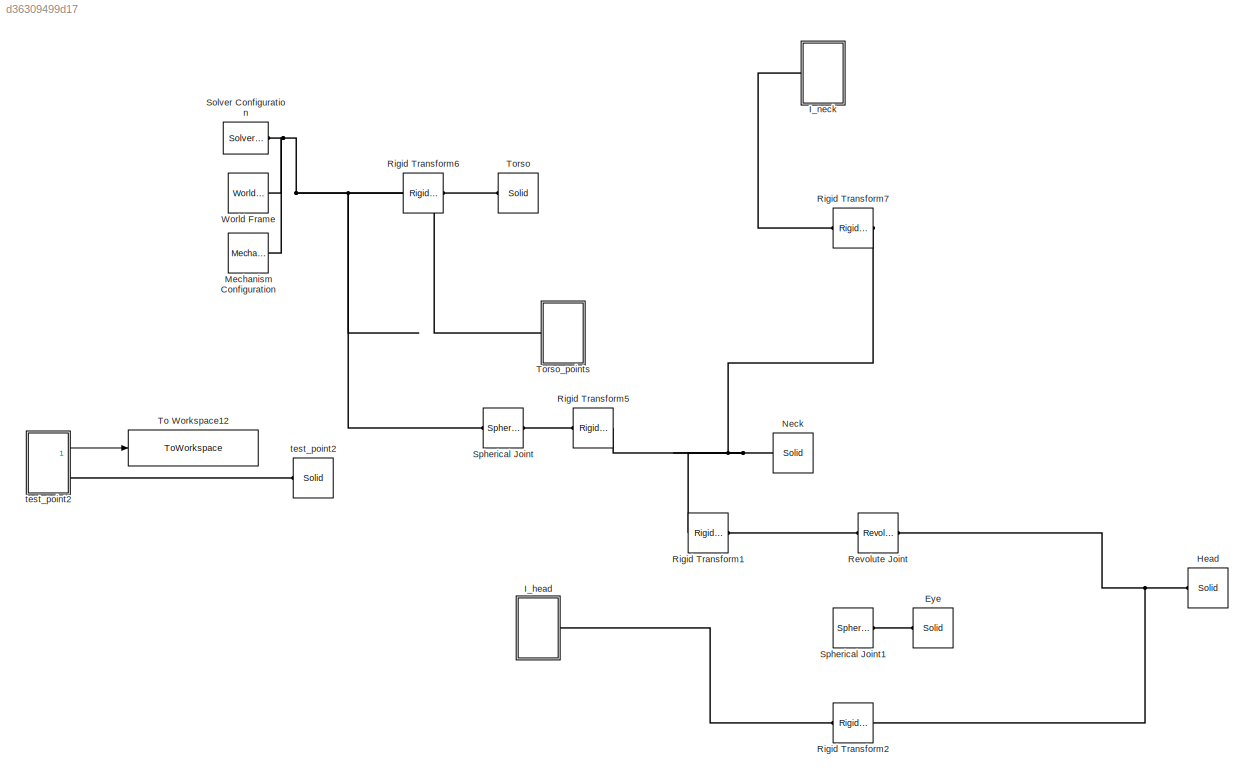
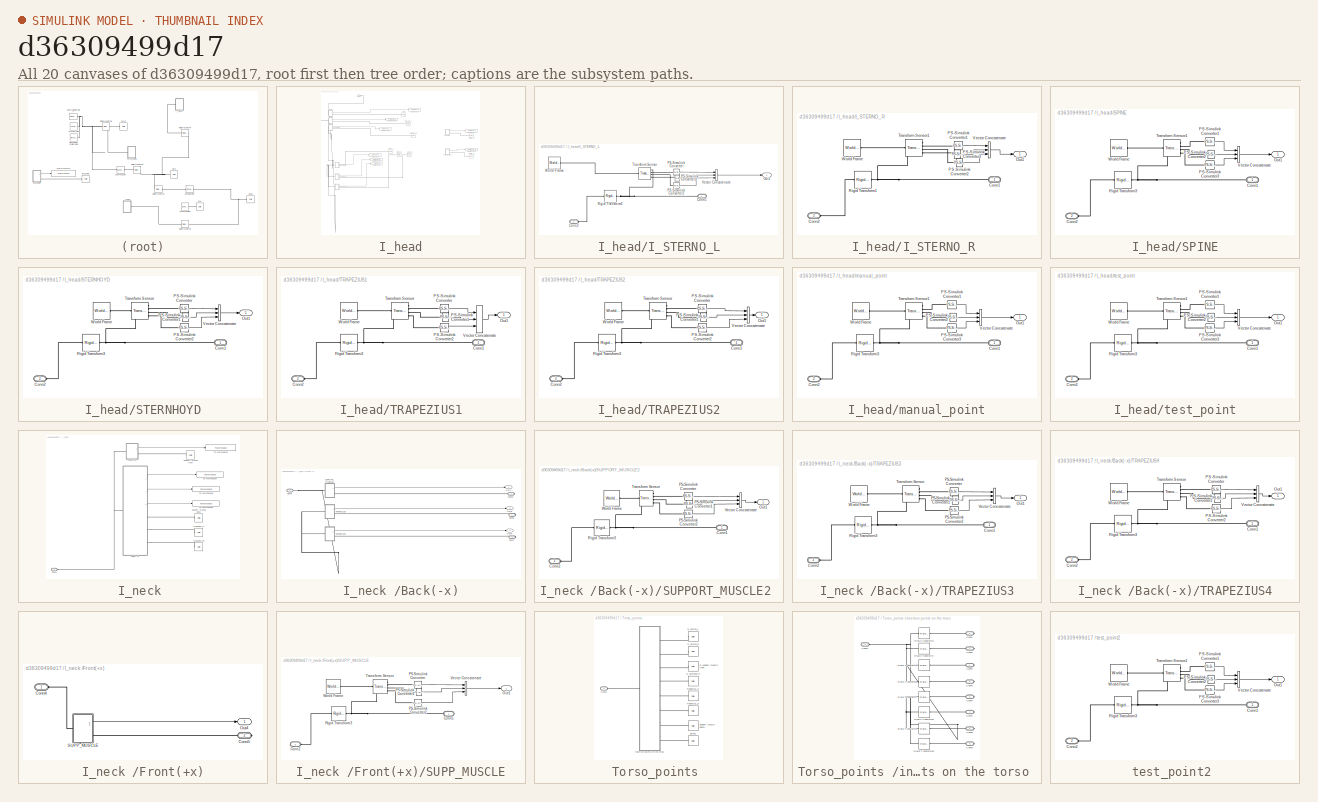
[diagram: thumbnail index - all 20 canvases of the model, root first then tree order]
MODEL slx_d36309499d17
KIND model
CONFIG AbsTol = auto
CONFIG EnableMultiTasking = off
CONFIG FixedStep = auto
CONFIG MaxStep = auto
CONFIG MinStep = auto
CONFIG RelTol = 1e-3
CONFIG SampleTimeConstraint = Unconstrained
CONFIG Solver = VariableStepAuto
CONFIG SolverName = VariableStepAuto
CONFIG StartTime = 0.0
CONFIG StopTime = 10.0
BLOCK [Reference] Eye  REF=sm_lib/Body Elements/Solid
  Commented = on
  Ports = [0, 0, 0, 0, 0, 0, 1]
  SourceBlock = sm_lib/Body Elements/Solid
  SourceProductBaseCode = MS
  SourceProductName = Simscape Multibody
  SourceType = Solid
BLOCK [Reference] Head  REF=sm_lib/Body Elements/Solid
  Ports = [0, 0, 0, 0, 0, 0, 1]
  SourceBlock = sm_lib/Body Elements/Solid
  SourceProductBaseCode = MS
  SourceProductName = Simscape Multibody
  SourceType = Solid
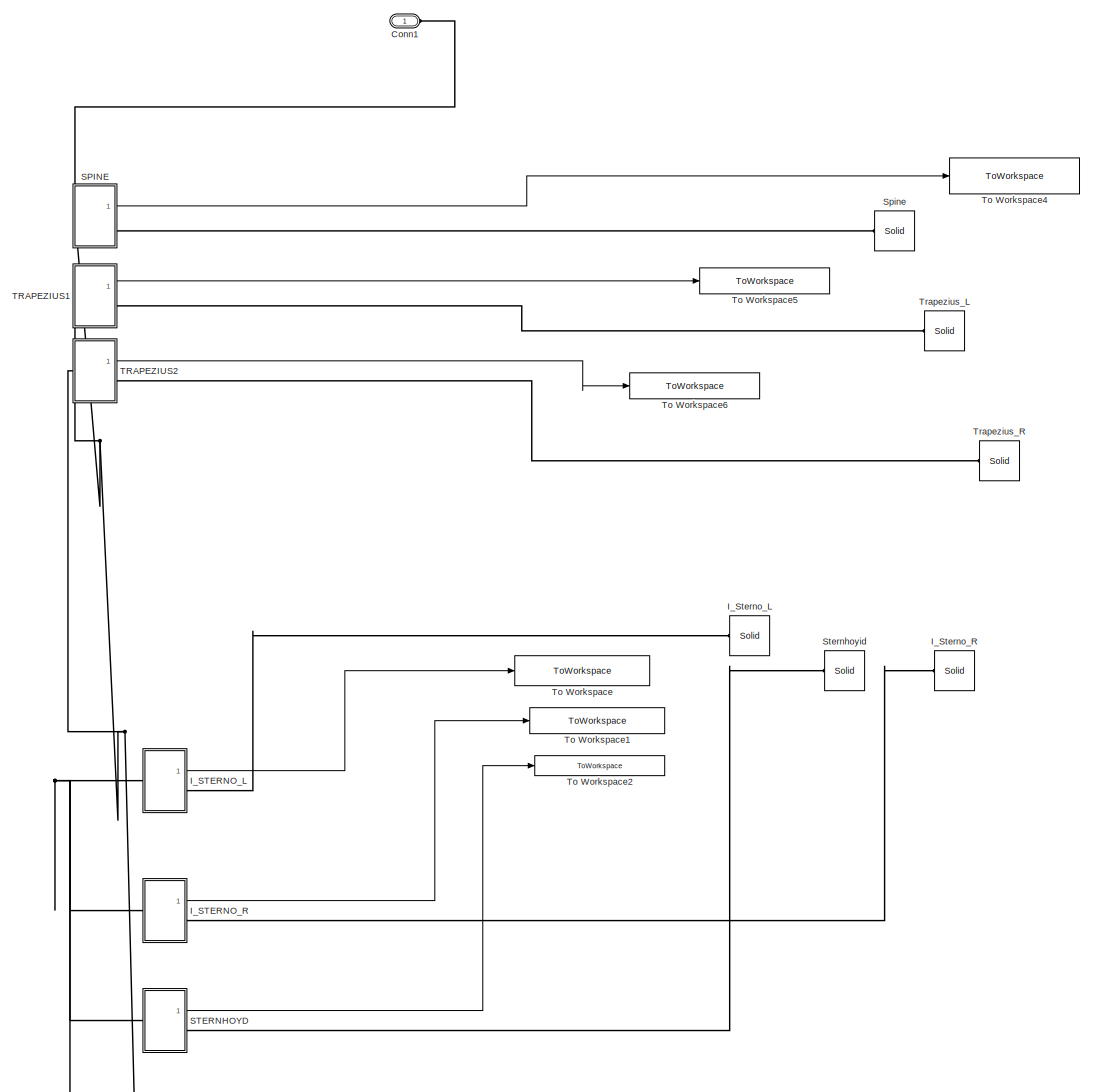
[diagram: I_head - part 1/2, middle left region]
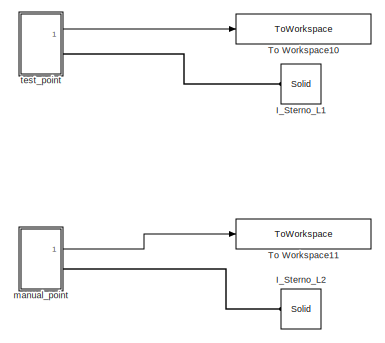
[diagram: I_head - part 2/2, middle right region]
BLOCK [SubSystem] I_head
  Ports = [0, 0, 0, 0, 0, 1]
  RequestExecContextInheritance = off
BLOCK [PMIOPort] I_head/Conn1
  Side = Left
BLOCK [SubSystem] I_head/I_STERNO_L
  Ports = [0, 1, 0, 0, 0, 1, 1]
  RequestExecContextInheritance = off
BLOCK [PMIOPort] I_head/I_STERNO_L/Conn1
  Side = Right
BLOCK [PMIOPort] I_head/I_STERNO_L/Conn2
  Port = 2
  Side = Left
BLOCK [Outport] I_head/I_STERNO_L/Out1
  IconDisplay = Port number
BLOCK [Reference] I_head/I_STERNO_L/PS-Simulink Converter  REF=nesl_utility/PS-Simulink
Converter
  Ports = [0, 1, 0, 0, 0, 1]
  SourceBlock = nesl_utility/PS-Simulink\nConverter
  SourceProductBaseCode = SS
  SourceProductName = Simscape
  SourceType = PS-Simulink\nConverter
BLOCK [Reference] I_head/I_STERNO_L/PS-Simulink Converter1  REF=nesl_utility/PS-Simulink
Converter
  Ports = [0, 1, 0, 0, 0, 1]
  SourceBlock = nesl_utility/PS-Simulink\nConverter
  SourceProductBaseCode = SS
  SourceProductName = Simscape
  SourceType = PS-Simulink\nConverter
BLOCK [Reference] I_head/I_STERNO_L/PS-Simulink Converter2  REF=nesl_utility/PS-Simulink
Converter
  Ports = [0, 1, 0, 0, 0, 1]
  SourceBlock = nesl_utility/PS-Simulink\nConverter
  SourceProductBaseCode = SS
  SourceProductName = Simscape
  SourceType = PS-Simulink\nConverter
BLOCK [Reference] I_head/I_STERNO_L/Rigid Transform3  REF=sm_lib/Frames and
Transforms/Rigid
Transform
  Ports = [0, 0, 0, 0, 0, 1, 1]
  SourceBlock = sm_lib/Frames and\nTransforms/Rigid\nTransform
  SourceProductBaseCode = MS
  SourceProductName = Simscape Multibody
  SourceType = Rigid\nTransform
BLOCK [Reference] I_head/I_STERNO_L/Transform Sensor  REF=sm_lib/Frames and
Transforms/Transform
Sensor
  Ports = [0, 0, 0, 0, 0, 1, 4]
  SourceBlock = sm_lib/Frames and\nTransforms/Transform\nSensor
  SourceProductBaseCode = MS
  SourceProductName = Simscape Multibody
  SourceType = Transform\nSensor
BLOCK [Concatenate] I_head/I_STERNO_L/Vector Concatenate
  NumInputs = 3
  Ports = [3, 1]
BLOCK [Reference] I_head/I_STERNO_L/World Frame  REF=sm_lib/Frames and
Transforms/World Frame
  Ports = [0, 0, 0, 0, 0, 0, 1]
  SourceBlock = sm_lib/Frames and\nTransforms/World Frame
  SourceProductBaseCode = MS
  SourceProductName = Simscape Multibody
  SourceType = World Frame
BLOCK [SubSystem] I_head/I_STERNO_R 
  Ports = [0, 1, 0, 0, 0, 1, 1]
  RequestExecContextInheritance = off
BLOCK [PMIOPort] I_head/I_STERNO_R /Conn1
  Side = Right
BLOCK [PMIOPort] I_head/I_STERNO_R /Conn2
  Port = 2
  Side = Left
BLOCK [Outport] I_head/I_STERNO_R /Out1
  IconDisplay = Port number
BLOCK [Reference] I_head/I_STERNO_R /PS-Simulink Converter1  REF=nesl_utility/PS-Simulink
Converter
  Ports = [0, 1, 0, 0, 0, 1]
  SourceBlock = nesl_utility/PS-Simulink\nConverter
  SourceProductBaseCode = SS
  SourceProductName = Simscape
  SourceType = PS-Simulink\nConverter
BLOCK [Reference] I_head/I_STERNO_R /PS-Simulink Converter2  REF=nesl_utility/PS-Simulink
Converter
  Ports = [0, 1, 0, 0, 0, 1]
  SourceBlock = nesl_utility/PS-Simulink\nConverter
  SourceProductBaseCode = SS
  SourceProductName = Simscape
  SourceType = PS-Simulink\nConverter
BLOCK [Reference] I_head/I_STERNO_R /PS-Simulink Converter3  REF=nesl_utility/PS-Simulink
Converter
  Ports = [0, 1, 0, 0, 0, 1]
  SourceBlock = nesl_utility/PS-Simulink\nConverter
  SourceProductBaseCode = SS
  SourceProductName = Simscape
  SourceType = PS-Simulink\nConverter
BLOCK [Reference] I_head/I_STERNO_R /Rigid Transform1  REF=sm_lib/Frames and
Transforms/Rigid
Transform
  Ports = [0, 0, 0, 0, 0, 1, 1]
  SourceBlock = sm_lib/Frames and\nTransforms/Rigid\nTransform
  SourceProductBaseCode = MS
  SourceProductName = Simscape Multibody
  SourceType = Rigid\nTransform
BLOCK [Reference] I_head/I_STERNO_R /Transform Sensor1  REF=sm_lib/Frames and
Transforms/Transform
Sensor
  Ports = [0, 0, 0, 0, 0, 1, 4]
  SourceBlock = sm_lib/Frames and\nTransforms/Transform\nSensor
  SourceProductBaseCode = MS
  SourceProductName = Simscape Multibody
  SourceType = Transform\nSensor
BLOCK [Concatenate] I_head/I_STERNO_R /Vector Concatenate
  NumInputs = 3
  Ports = [3, 1]
BLOCK [Reference] I_head/I_STERNO_R /World Frame  REF=sm_lib/Frames and
Transforms/World Frame
  Ports = [0, 0, 0, 0, 0, 0, 1]
  SourceBlock = sm_lib/Frames and\nTransforms/World Frame
  SourceProductBaseCode = MS
  SourceProductName = Simscape Multibody
  SourceType = World Frame
BLOCK [Reference] I_head/I_Sterno_L  REF=sm_lib/Body Elements/Solid
  Ports = [0, 0, 0, 0, 0, 0, 1]
  SourceBlock = sm_lib/Body Elements/Solid
  SourceProductBaseCode = MS
  SourceProductName = Simscape Multibody
  SourceType = Solid
BLOCK [Reference] I_head/I_Sterno_L1  REF=sm_lib/Body Elements/Solid
  Commented = on
  Ports = [0, 0, 0, 0, 0, 0, 1]
  SourceBlock = sm_lib/Body Elements/Solid
  SourceProductBaseCode = MS
  SourceProductName = Simscape Multibody
  SourceType = Solid
BLOCK [Reference] I_head/I_Sterno_L2  REF=sm_lib/Body Elements/Solid
  Commented = on
  Ports = [0, 0, 0, 0, 0, 0, 1]
  SourceBlock = sm_lib/Body Elements/Solid
  SourceProductBaseCode = MS
  SourceProductName = Simscape Multibody
  SourceType = Solid
BLOCK [Reference] I_head/I_Sterno_R  REF=sm_lib/Body Elements/Solid
  Ports = [0, 0, 0, 0, 0, 0, 1]
  SourceBlock = sm_lib/Body Elements/Solid
  SourceProductBaseCode = MS
  SourceProductName = Simscape Multibody
  SourceType = Solid
BLOCK [SubSystem] I_head/SPINE
  Ports = [0, 1, 0, 0, 0, 1, 1]
  RequestExecContextInheritance = off
BLOCK [PMIOPort] I_head/SPINE/Conn1
  Side = Right
BLOCK [PMIOPort] I_head/SPINE/Conn2
  Port = 2
  Side = Left
BLOCK [Outport] I_head/SPINE/Out1
  IconDisplay = Port number
BLOCK [Reference] I_head/SPINE/PS-Simulink Converter1  REF=nesl_utility/PS-Simulink
Converter
  Ports = [0, 1, 0, 0, 0, 1]
  SourceBlock = nesl_utility/PS-Simulink\nConverter
  SourceProductBaseCode = SS
  SourceProductName = Simscape
  SourceType = PS-Simulink\nConverter
BLOCK [Reference] I_head/SPINE/PS-Simulink Converter2  REF=nesl_utility/PS-Simulink
Converter
  Ports = [0, 1, 0, 0, 0, 1]
  SourceBlock = nesl_utility/PS-Simulink\nConverter
  SourceProductBaseCode = SS
  SourceProductName = Simscape
  SourceType = PS-Simulink\nConverter
BLOCK [Reference] I_head/SPINE/PS-Simulink Converter3  REF=nesl_utility/PS-Simulink
Converter
  Ports = [0, 1, 0, 0, 0, 1]
  SourceBlock = nesl_utility/PS-Simulink\nConverter
  SourceProductBaseCode = SS
  SourceProductName = Simscape
  SourceType = PS-Simulink\nConverter
BLOCK [Reference] I_head/SPINE/Rigid Transform3  REF=sm_lib/Frames and
Transforms/Rigid
Transform
  Ports = [0, 0, 0, 0, 0, 1, 1]
  SourceBlock = sm_lib/Frames and\nTransforms/Rigid\nTransform
  SourceProductBaseCode = MS
  SourceProductName = Simscape Multibody
  SourceType = Rigid\nTransform
BLOCK [Reference] I_head/SPINE/Transform Sensor1  REF=sm_lib/Frames and
Transforms/Transform
Sensor
  Ports = [0, 0, 0, 0, 0, 1, 4]
  SourceBlock = sm_lib/Frames and\nTransforms/Transform\nSensor
  SourceProductBaseCode = MS
  SourceProductName = Simscape Multibody
  SourceType = Transform\nSensor
BLOCK [Concatenate] I_head/SPINE/Vector Concatenate
  NumInputs = 3
  Ports = [3, 1]
BLOCK [Reference] I_head/SPINE/World Frame  REF=sm_lib/Frames and
Transforms/World Frame
  Ports = [0, 0, 0, 0, 0, 0, 1]
  SourceBlock = sm_lib/Frames and\nTransforms/World Frame
  SourceProductBaseCode = MS
  SourceProductName = Simscape Multibody
  SourceType = World Frame
BLOCK [SubSystem] I_head/STERNHOYD
  Ports = [0, 1, 0, 0, 0, 1, 1]
  RequestExecContextInheritance = off
BLOCK [PMIOPort] I_head/STERNHOYD/Conn1
  Side = Right
BLOCK [PMIOPort] I_head/STERNHOYD/Conn2
  Port = 2
  Side = Left
BLOCK [Outport] I_head/STERNHOYD/Out1
  IconDisplay = Port number
BLOCK [Reference] I_head/STERNHOYD/PS-Simulink Converter  REF=nesl_utility/PS-Simulink
Converter
  Ports = [0, 1, 0, 0, 0, 1]
  SourceBlock = nesl_utility/PS-Simulink\nConverter
  SourceProductBaseCode = SS
  SourceProductName = Simscape
  SourceType = PS-Simulink\nConverter
BLOCK [Reference] I_head/STERNHOYD/PS-Simulink Converter1  REF=nesl_utility/PS-Simulink
Converter
  Ports = [0, 1, 0, 0, 0, 1]
  SourceBlock = nesl_utility/PS-Simulink\nConverter
  SourceProductBaseCode = SS
  SourceProductName = Simscape
  SourceType = PS-Simulink\nConverter
BLOCK [Reference] I_head/STERNHOYD/PS-Simulink Converter2  REF=nesl_utility/PS-Simulink
Converter
  Ports = [0, 1, 0, 0, 0, 1]
  SourceBlock = nesl_utility/PS-Simulink\nConverter
  SourceProductBaseCode = SS
  SourceProductName = Simscape
  SourceType = PS-Simulink\nConverter
BLOCK [Reference] I_head/STERNHOYD/Rigid Transform3  REF=sm_lib/Frames and
Transforms/Rigid
Transform
  Ports = [0, 0, 0, 0, 0, 1, 1]
  SourceBlock = sm_lib/Frames and\nTransforms/Rigid\nTransform
  SourceProductBaseCode = MS
  SourceProductName = Simscape Multibody
  SourceType = Rigid\nTransform
BLOCK [Reference] I_head/STERNHOYD/Transform Sensor  REF=sm_lib/Frames and
Transforms/Transform
Sensor
  Ports = [0, 0, 0, 0, 0, 1, 4]
  SourceBlock = sm_lib/Frames and\nTransforms/Transform\nSensor
  SourceProductBaseCode = MS
  SourceProductName = Simscape Multibody
  SourceType = Transform\nSensor
BLOCK [Concatenate] I_head/STERNHOYD/Vector Concatenate
  NumInputs = 3
  Ports = [3, 1]
BLOCK [Reference] I_head/STERNHOYD/World Frame  REF=sm_lib/Frames and
Transforms/World Frame
  Ports = [0, 0, 0, 0, 0, 0, 1]
  SourceBlock = sm_lib/Frames and\nTransforms/World Frame
  SourceProductBaseCode = MS
  SourceProductName = Simscape Multibody
  SourceType = World Frame
BLOCK [Reference] I_head/Spine  REF=sm_lib/Body Elements/Solid
  Ports = [0, 0, 0, 0, 0, 0, 1]
  SourceBlock = sm_lib/Body Elements/Solid
  SourceProductBaseCode = MS
  SourceProductName = Simscape Multibody
  SourceType = Solid
BLOCK [Reference] I_head/Sternhoyid  REF=sm_lib/Body Elements/Solid
  Ports = [0, 0, 0, 0, 0, 0, 1]
  SourceBlock = sm_lib/Body Elements/Solid
  SourceProductBaseCode = MS
  SourceProductName = Simscape Multibody
  SourceType = Solid
BLOCK [SubSystem] I_head/TRAPEZIUS1
  Ports = [0, 1, 0, 0, 0, 1, 1]
  RequestExecContextInheritance = off
BLOCK [PMIOPort] I_head/TRAPEZIUS1/Conn1
  Side = Right
BLOCK [PMIOPort] I_head/TRAPEZIUS1/Conn2
  Port = 2
  Side = Left
BLOCK [Outport] I_head/TRAPEZIUS1/Out1
  IconDisplay = Port number
BLOCK [Reference] I_head/TRAPEZIUS1/PS-Simulink Converter  REF=nesl_utility/PS-Simulink
Converter
  Ports = [0, 1, 0, 0, 0, 1]
  SourceBlock = nesl_utility/PS-Simulink\nConverter
  SourceProductBaseCode = SS
  SourceProductName = Simscape
  SourceType = PS-Simulink\nConverter
BLOCK [Reference] I_head/TRAPEZIUS1/PS-Simulink Converter1  REF=nesl_utility/PS-Simulink
Converter
  Ports = [0, 1, 0, 0, 0, 1]
  SourceBlock = nesl_utility/PS-Simulink\nConverter
  SourceProductBaseCode = SS
  SourceProductName = Simscape
  SourceType = PS-Simulink\nConverter
BLOCK [Reference] I_head/TRAPEZIUS1/PS-Simulink Converter2  REF=nesl_utility/PS-Simulink
Converter
  Ports = [0, 1, 0, 0, 0, 1]
  SourceBlock = nesl_utility/PS-Simulink\nConverter
  SourceProductBaseCode = SS
  SourceProductName = Simscape
  SourceType = PS-Simulink\nConverter
BLOCK [Reference] I_head/TRAPEZIUS1/Rigid Transform3  REF=sm_lib/Frames and
Transforms/Rigid
Transform
  Ports = [0, 0, 0, 0, 0, 1, 1]
  SourceBlock = sm_lib/Frames and\nTransforms/Rigid\nTransform
  SourceProductBaseCode = MS
  SourceProductName = Simscape Multibody
  SourceType = Rigid\nTransform
BLOCK [Reference] I_head/TRAPEZIUS1/Transform Sensor  REF=sm_lib/Frames and
Transforms/Transform
Sensor
  Ports = [0, 0, 0, 0, 0, 1, 4]
  SourceBlock = sm_lib/Frames and\nTransforms/Transform\nSensor
  SourceProductBaseCode = MS
  SourceProductName = Simscape Multibody
  SourceType = Transform\nSensor
BLOCK [Concatenate] I_head/TRAPEZIUS1/Vector Concatenate
  NumInputs = 3
  Ports = [3, 1]
BLOCK [Reference] I_head/TRAPEZIUS1/World Frame  REF=sm_lib/Frames and
Transforms/World Frame
  Ports = [0, 0, 0, 0, 0, 0, 1]
  SourceBlock = sm_lib/Frames and\nTransforms/World Frame
  SourceProductBaseCode = MS
  SourceProductName = Simscape Multibody
  SourceType = World Frame
BLOCK [SubSystem] I_head/TRAPEZIUS2
  Ports = [0, 1, 0, 0, 0, 1, 1]
  RequestExecContextInheritance = off
BLOCK [PMIOPort] I_head/TRAPEZIUS2/Conn1
  Side = Right
BLOCK [PMIOPort] I_head/TRAPEZIUS2/Conn2
  Port = 2
  Side = Left
BLOCK [Outport] I_head/TRAPEZIUS2/Out1
  IconDisplay = Port number
BLOCK [Reference] I_head/TRAPEZIUS2/PS-Simulink Converter  REF=nesl_utility/PS-Simulink
Converter
  Ports = [0, 1, 0, 0, 0, 1]
  SourceBlock = nesl_utility/PS-Simulink\nConverter
  SourceProductBaseCode = SS
  SourceProductName = Simscape
  SourceType = PS-Simulink\nConverter
BLOCK [Reference] I_head/TRAPEZIUS2/PS-Simulink Converter1  REF=nesl_utility/PS-Simulink
Converter
  Ports = [0, 1, 0, 0, 0, 1]
  SourceBlock = nesl_utility/PS-Simulink\nConverter
  SourceProductBaseCode = SS
  SourceProductName = Simscape
  SourceType = PS-Simulink\nConverter
BLOCK [Reference] I_head/TRAPEZIUS2/PS-Simulink Converter2  REF=nesl_utility/PS-Simulink
Converter
  Ports = [0, 1, 0, 0, 0, 1]
  SourceBlock = nesl_utility/PS-Simulink\nConverter
  SourceProductBaseCode = SS
  SourceProductName = Simscape
  SourceType = PS-Simulink\nConverter
BLOCK [Reference] I_head/TRAPEZIUS2/Rigid Transform3  REF=sm_lib/Frames and
Transforms/Rigid
Transform
  Ports = [0, 0, 0, 0, 0, 1, 1]
  SourceBlock = sm_lib/Frames and\nTransforms/Rigid\nTransform
  SourceProductBaseCode = MS
  SourceProductName = Simscape Multibody
  SourceType = Rigid\nTransform
BLOCK [Reference] I_head/TRAPEZIUS2/Transform Sensor  REF=sm_lib/Frames and
Transforms/Transform
Sensor
  Ports = [0, 0, 0, 0, 0, 1, 4]
  SourceBlock = sm_lib/Frames and\nTransforms/Transform\nSensor
  SourceProductBaseCode = MS
  SourceProductName = Simscape Multibody
  SourceType = Transform\nSensor
BLOCK [Concatenate] I_head/TRAPEZIUS2/Vector Concatenate
  NumInputs = 3
  Ports = [3, 1]
BLOCK [Reference] I_head/TRAPEZIUS2/World Frame  REF=sm_lib/Frames and
Transforms/World Frame
  Ports = [0, 0, 0, 0, 0, 0, 1]
  SourceBlock = sm_lib/Frames and\nTransforms/World Frame
  SourceProductBaseCode = MS
  SourceProductName = Simscape Multibody
  SourceType = World Frame
BLOCK [ToWorkspace] I_head/To Workspace
  FixptAsFi = on
  MaxDataPoints = inf
  Ports = [1]
  SampleTime = -1
  Save2DSignal = 3-D array (concatenate along third dimension)
  VariableName = Sterno_L_move
BLOCK [ToWorkspace] I_head/To Workspace1
  FixptAsFi = on
  MaxDataPoints = inf
  Ports = [1]
  SampleTime = -1
  Save2DSignal = 3-D array (concatenate along third dimension)
  VariableName = Sterno_R_move
BLOCK [ToWorkspace] I_head/To Workspace10
  Commented = on
  FixptAsFi = on
  MaxDataPoints = inf
  Ports = [1]
  SampleTime = -1
  Save2DSignal = 3-D array (concatenate along third dimension)
  VariableName = test_point_move
BLOCK [ToWorkspace] I_head/To Workspace11
  Commented = on
  FixptAsFi = on
  MaxDataPoints = inf
  Ports = [1]
  SampleTime = -1
  Save2DSignal = 3-D array (concatenate along third dimension)
  VariableName = manual_point_move
BLOCK [ToWorkspace] I_head/To Workspace2
  FixptAsFi = on
  MaxDataPoints = inf
  Ports = [1]
  SampleTime = -1
  Save2DSignal = 3-D array (concatenate along third dimension)
  VariableName = Sternhyoid_move
BLOCK [ToWorkspace] I_head/To Workspace4
  FixptAsFi = on
  MaxDataPoints = inf
  Ports = [1]
  SampleTime = -1
  Save2DSignal = 3-D array (concatenate along third dimension)
  VariableName = Spine_move
BLOCK [ToWorkspace] I_head/To Workspace5
  FixptAsFi = on
  MaxDataPoints = inf
  Ports = [1]
  SampleTime = -1
  Save2DSignal = 3-D array (concatenate along third dimension)
  VariableName = Trapezius_L_move
BLOCK [ToWorkspace] I_head/To Workspace6
  FixptAsFi = on
  MaxDataPoints = inf
  Ports = [1]
  SampleTime = -1
  Save2DSignal = 3-D array (concatenate along third dimension)
  VariableName = Trapezius_R_move
BLOCK [Reference] I_head/Trapezius_L  REF=sm_lib/Body Elements/Solid
  Ports = [0, 0, 0, 0, 0, 0, 1]
  SourceBlock = sm_lib/Body Elements/Solid
  SourceProductBaseCode = MS
  SourceProductName = Simscape Multibody
  SourceType = Solid
BLOCK [Reference] I_head/Trapezius_R  REF=sm_lib/Body Elements/Solid
  Ports = [0, 0, 0, 0, 0, 0, 1]
  SourceBlock = sm_lib/Body Elements/Solid
  SourceProductBaseCode = MS
  SourceProductName = Simscape Multibody
  SourceType = Solid
BLOCK [SubSystem] I_head/manual_point
  Commented = on
  Ports = [0, 1, 0, 0, 0, 1, 1]
  RequestExecContextInheritance = off
BLOCK [PMIOPort] I_head/manual_point/Conn1
  Side = Right
BLOCK [PMIOPort] I_head/manual_point/Conn2
  Port = 2
  Side = Left
BLOCK [Outport] I_head/manual_point/Out1
  IconDisplay = Port number
BLOCK [Reference] I_head/manual_point/PS-Simulink Converter1  REF=nesl_utility/PS-Simulink
Converter
  Ports = [0, 1, 0, 0, 0, 1]
  SourceBlock = nesl_utility/PS-Simulink\nConverter
  SourceProductBaseCode = SS
  SourceProductName = Simscape
  SourceType = PS-Simulink\nConverter
BLOCK [Reference] I_head/manual_point/PS-Simulink Converter2  REF=nesl_utility/PS-Simulink
Converter
  Ports = [0, 1, 0, 0, 0, 1]
  SourceBlock = nesl_utility/PS-Simulink\nConverter
  SourceProductBaseCode = SS
  SourceProductName = Simscape
  SourceType = PS-Simulink\nConverter
BLOCK [Reference] I_head/manual_point/PS-Simulink Converter3  REF=nesl_utility/PS-Simulink
Converter
  Ports = [0, 1, 0, 0, 0, 1]
  SourceBlock = nesl_utility/PS-Simulink\nConverter
  SourceProductBaseCode = SS
  SourceProductName = Simscape
  SourceType = PS-Simulink\nConverter
BLOCK [Reference] I_head/manual_point/Rigid Transform3  REF=sm_lib/Frames and
Transforms/Rigid
Transform
  Ports = [0, 0, 0, 0, 0, 1, 1]
  SourceBlock = sm_lib/Frames and\nTransforms/Rigid\nTransform
  SourceProductBaseCode = MS
  SourceProductName = Simscape Multibody
  SourceType = Rigid\nTransform
BLOCK [Reference] I_head/manual_point/Transform Sensor1  REF=sm_lib/Frames and
Transforms/Transform
Sensor
  Ports = [0, 0, 0, 0, 0, 1, 4]
  SourceBlock = sm_lib/Frames and\nTransforms/Transform\nSensor
  SourceProductBaseCode = MS
  SourceProductName = Simscape Multibody
  SourceType = Transform\nSensor
BLOCK [Concatenate] I_head/manual_point/Vector Concatenate
  NumInputs = 3
  Ports = [3, 1]
BLOCK [Reference] I_head/manual_point/World Frame  REF=sm_lib/Frames and
Transforms/World Frame
  Ports = [0, 0, 0, 0, 0, 0, 1]
  SourceBlock = sm_lib/Frames and\nTransforms/World Frame
  SourceProductBaseCode = MS
  SourceProductName = Simscape Multibody
  SourceType = World Frame
BLOCK [SubSystem] I_head/test_point
  Commented = on
  Ports = [0, 1, 0, 0, 0, 1, 1]
  RequestExecContextInheritance = off
BLOCK [PMIOPort] I_head/test_point/Conn1
  Side = Right
BLOCK [PMIOPort] I_head/test_point/Conn2
  Port = 2
  Side = Left
BLOCK [Outport] I_head/test_point/Out1
  IconDisplay = Port number
BLOCK [Reference] I_head/test_point/PS-Simulink Converter1  REF=nesl_utility/PS-Simulink
Converter
  Ports = [0, 1, 0, 0, 0, 1]
  SourceBlock = nesl_utility/PS-Simulink\nConverter
  SourceProductBaseCode = SS
  SourceProductName = Simscape
  SourceType = PS-Simulink\nConverter
BLOCK [Reference] I_head/test_point/PS-Simulink Converter2  REF=nesl_utility/PS-Simulink
Converter
  Ports = [0, 1, 0, 0, 0, 1]
  SourceBlock = nesl_utility/PS-Simulink\nConverter
  SourceProductBaseCode = SS
  SourceProductName = Simscape
  SourceType = PS-Simulink\nConverter
BLOCK [Reference] I_head/test_point/PS-Simulink Converter3  REF=nesl_utility/PS-Simulink
Converter
  Ports = [0, 1, 0, 0, 0, 1]
  SourceBlock = nesl_utility/PS-Simulink\nConverter
  SourceProductBaseCode = SS
  SourceProductName = Simscape
  SourceType = PS-Simulink\nConverter
BLOCK [Reference] I_head/test_point/Rigid Transform3  REF=sm_lib/Frames and
Transforms/Rigid
Transform
  Ports = [0, 0, 0, 0, 0, 1, 1]
  SourceBlock = sm_lib/Frames and\nTransforms/Rigid\nTransform
  SourceProductBaseCode = MS
  SourceProductName = Simscape Multibody
  SourceType = Rigid\nTransform
BLOCK [Reference] I_head/test_point/Transform Sensor1  REF=sm_lib/Frames and
Transforms/Transform
Sensor
  Ports = [0, 0, 0, 0, 0, 1, 4]
  SourceBlock = sm_lib/Frames and\nTransforms/Transform\nSensor
  SourceProductBaseCode = MS
  SourceProductName = Simscape Multibody
  SourceType = Transform\nSensor
BLOCK [Concatenate] I_head/test_point/Vector Concatenate
  NumInputs = 3
  Ports = [3, 1]
BLOCK [Reference] I_head/test_point/World Frame  REF=sm_lib/Frames and
Transforms/World Frame
  Ports = [0, 0, 0, 0, 0, 0, 1]
  SourceBlock = sm_lib/Frames and\nTransforms/World Frame
  SourceProductBaseCode = MS
  SourceProductName = Simscape Multibody
  SourceType = World Frame
BLOCK [SubSystem] I_neck 
  Ports = [0, 0, 0, 0, 0, 1]
  RequestExecContextInheritance = off
BLOCK [SubSystem] I_neck /Back(-x)
  Ports = [0, 3, 0, 0, 0, 1, 3]
  RequestExecContextInheritance = off
BLOCK [PMIOPort] I_neck /Back(-x)/Conn4
  Side = Left
BLOCK [PMIOPort] I_neck /Back(-x)/Conn5
  Port = 2
  Side = Right
BLOCK [PMIOPort] I_neck /Back(-x)/Conn6
  Port = 3
  Side = Right
BLOCK [PMIOPort] I_neck /Back(-x)/Conn7
  Port = 4
  Side = Right
BLOCK [Outport] I_neck /Back(-x)/Out4
  IconDisplay = Port number
BLOCK [Outport] I_neck /Back(-x)/Out5
  IconDisplay = Port number
  Port = 2
BLOCK [Outport] I_neck /Back(-x)/Out6
  IconDisplay = Port number
  Port = 3
BLOCK [SubSystem] I_neck /Back(-x)/SUPPORT_MUSCLE2 
  Ports = [0, 1, 0, 0, 0, 1, 1]
  RequestExecContextInheritance = off
BLOCK [PMIOPort] I_neck /Back(-x)/SUPPORT_MUSCLE2 /Conn1
  Side = Right
BLOCK [PMIOPort] I_neck /Back(-x)/SUPPORT_MUSCLE2 /Conn2
  Port = 2
  Side = Left
BLOCK [Outport] I_neck /Back(-x)/SUPPORT_MUSCLE2 /Out1
  IconDisplay = Port number
BLOCK [Reference] I_neck /Back(-x)/SUPPORT_MUSCLE2 /PS-Simulink Converter  REF=nesl_utility/PS-Simulink
Converter
  Ports = [0, 1, 0, 0, 0, 1]
  SourceBlock = nesl_utility/PS-Simulink\nConverter
  SourceProductBaseCode = SS
  SourceProductName = Simscape
  SourceType = PS-Simulink\nConverter
BLOCK [Reference] I_neck /Back(-x)/SUPPORT_MUSCLE2 /PS-Simulink Converter1  REF=nesl_utility/PS-Simulink
Converter
  Ports = [0, 1, 0, 0, 0, 1]
  SourceBlock = nesl_utility/PS-Simulink\nConverter
  SourceProductBaseCode = SS
  SourceProductName = Simscape
  SourceType = PS-Simulink\nConverter
BLOCK [Reference] I_neck /Back(-x)/SUPPORT_MUSCLE2 /PS-Simulink Converter2  REF=nesl_utility/PS-Simulink
Converter
  Ports = [0, 1, 0, 0, 0, 1]
  SourceBlock = nesl_utility/PS-Simulink\nConverter
  SourceProductBaseCode = SS
  SourceProductName = Simscape
  SourceType = PS-Simulink\nConverter
BLOCK [Reference] I_neck /Back(-x)/SUPPORT_MUSCLE2 /Rigid Transform3  REF=sm_lib/Frames and
Transforms/Rigid
Transform
  Ports = [0, 0, 0, 0, 0, 1, 1]
  SourceBlock = sm_lib/Frames and\nTransforms/Rigid\nTransform
  SourceProductBaseCode = MS
  SourceProductName = Simscape Multibody
  SourceType = Rigid\nTransform
BLOCK [Reference] I_neck /Back(-x)/SUPPORT_MUSCLE2 /Transform Sensor  REF=sm_lib/Frames and
Transforms/Transform
Sensor
  Ports = [0, 0, 0, 0, 0, 1, 4]
  SourceBlock = sm_lib/Frames and\nTransforms/Transform\nSensor
  SourceProductBaseCode = MS
  SourceProductName = Simscape Multibody
  SourceType = Transform\nSensor
BLOCK [Concatenate] I_neck /Back(-x)/SUPPORT_MUSCLE2 /Vector Concatenate
  NumInputs = 3
  Ports = [3, 1]
BLOCK [Reference] I_neck /Back(-x)/SUPPORT_MUSCLE2 /World Frame  REF=sm_lib/Frames and
Transforms/World Frame
  Ports = [0, 0, 0, 0, 0, 0, 1]
  SourceBlock = sm_lib/Frames and\nTransforms/World Frame
  SourceProductBaseCode = MS
  SourceProductName = Simscape Multibody
  SourceType = World Frame
BLOCK [SubSystem] I_neck /Back(-x)/TRAPEZIUS3
  Ports = [0, 1, 0, 0, 0, 1, 1]
  RequestExecContextInheritance = off
BLOCK [PMIOPort] I_neck /Back(-x)/TRAPEZIUS3/Conn1
  Side = Right
BLOCK [PMIOPort] I_neck /Back(-x)/TRAPEZIUS3/Conn2
  Port = 2
  Side = Left
BLOCK [Outport] I_neck /Back(-x)/TRAPEZIUS3/Out1
  IconDisplay = Port number
BLOCK [Reference] I_neck /Back(-x)/TRAPEZIUS3/PS-Simulink Converter  REF=nesl_utility/PS-Simulink
Converter
  Ports = [0, 1, 0, 0, 0, 1]
  SourceBlock = nesl_utility/PS-Simulink\nConverter
  SourceProductBaseCode = SS
  SourceProductName = Simscape
  SourceType = PS-Simulink\nConverter
BLOCK [Reference] I_neck /Back(-x)/TRAPEZIUS3/PS-Simulink Converter1  REF=nesl_utility/PS-Simulink
Converter
  Ports = [0, 1, 0, 0, 0, 1]
  SourceBlock = nesl_utility/PS-Simulink\nConverter
  SourceProductBaseCode = SS
  SourceProductName = Simscape
  SourceType = PS-Simulink\nConverter
BLOCK [Reference] I_neck /Back(-x)/TRAPEZIUS3/PS-Simulink Converter2  REF=nesl_utility/PS-Simulink
Converter
  Ports = [0, 1, 0, 0, 0, 1]
  SourceBlock = nesl_utility/PS-Simulink\nConverter
  SourceProductBaseCode = SS
  SourceProductName = Simscape
  SourceType = PS-Simulink\nConverter
BLOCK [Reference] I_neck /Back(-x)/TRAPEZIUS3/Rigid Transform3  REF=sm_lib/Frames and
Transforms/Rigid
Transform
  Ports = [0, 0, 0, 0, 0, 1, 1]
  SourceBlock = sm_lib/Frames and\nTransforms/Rigid\nTransform
  SourceProductBaseCode = MS
  SourceProductName = Simscape Multibody
  SourceType = Rigid\nTransform
BLOCK [Reference] I_neck /Back(-x)/TRAPEZIUS3/Transform Sensor  REF=sm_lib/Frames and
Transforms/Transform
Sensor
  Ports = [0, 0, 0, 0, 0, 1, 4]
  SourceBlock = sm_lib/Frames and\nTransforms/Transform\nSensor
  SourceProductBaseCode = MS
  SourceProductName = Simscape Multibody
  SourceType = Transform\nSensor
BLOCK [Concatenate] I_neck /Back(-x)/TRAPEZIUS3/Vector Concatenate
  NumInputs = 3
  Ports = [3, 1]
BLOCK [Reference] I_neck /Back(-x)/TRAPEZIUS3/World Frame  REF=sm_lib/Frames and
Transforms/World Frame
  Ports = [0, 0, 0, 0, 0, 0, 1]
  SourceBlock = sm_lib/Frames and\nTransforms/World Frame
  SourceProductBaseCode = MS
  SourceProductName = Simscape Multibody
  SourceType = World Frame
BLOCK [SubSystem] I_neck /Back(-x)/TRAPEZIUS4
  Ports = [0, 1, 0, 0, 0, 1, 1]
  RequestExecContextInheritance = off
BLOCK [PMIOPort] I_neck /Back(-x)/TRAPEZIUS4/Conn1
  Side = Right
BLOCK [PMIOPort] I_neck /Back(-x)/TRAPEZIUS4/Conn2
  Port = 2
  Side = Left
BLOCK [Outport] I_neck /Back(-x)/TRAPEZIUS4/Out1
  IconDisplay = Port number
BLOCK [Reference] I_neck /Back(-x)/TRAPEZIUS4/PS-Simulink Converter  REF=nesl_utility/PS-Simulink
Converter
  Ports = [0, 1, 0, 0, 0, 1]
  SourceBlock = nesl_utility/PS-Simulink\nConverter
  SourceProductBaseCode = SS
  SourceProductName = Simscape
  SourceType = PS-Simulink\nConverter
BLOCK [Reference] I_neck /Back(-x)/TRAPEZIUS4/PS-Simulink Converter1  REF=nesl_utility/PS-Simulink
Converter
  Ports = [0, 1, 0, 0, 0, 1]
  SourceBlock = nesl_utility/PS-Simulink\nConverter
  SourceProductBaseCode = SS
  SourceProductName = Simscape
  SourceType = PS-Simulink\nConverter
BLOCK [Reference] I_neck /Back(-x)/TRAPEZIUS4/PS-Simulink Converter2  REF=nesl_utility/PS-Simulink
Converter
  Ports = [0, 1, 0, 0, 0, 1]
  SourceBlock = nesl_utility/PS-Simulink\nConverter
  SourceProductBaseCode = SS
  SourceProductName = Simscape
  SourceType = PS-Simulink\nConverter
BLOCK [Reference] I_neck /Back(-x)/TRAPEZIUS4/Rigid Transform3  REF=sm_lib/Frames and
Transforms/Rigid
Transform
  Ports = [0, 0, 0, 0, 0, 1, 1]
  SourceBlock = sm_lib/Frames and\nTransforms/Rigid\nTransform
  SourceProductBaseCode = MS
  SourceProductName = Simscape Multibody
  SourceType = Rigid\nTransform
BLOCK [Reference] I_neck /Back(-x)/TRAPEZIUS4/Transform Sensor  REF=sm_lib/Frames and
Transforms/Transform
Sensor
  Ports = [0, 0, 0, 0, 0, 1, 4]
  SourceBlock = sm_lib/Frames and\nTransforms/Transform\nSensor
  SourceProductBaseCode = MS
  SourceProductName = Simscape Multibody
  SourceType = Transform\nSensor
BLOCK [Concatenate] I_neck /Back(-x)/TRAPEZIUS4/Vector Concatenate
  NumInputs = 3
  Ports = [3, 1]
BLOCK [Reference] I_neck /Back(-x)/TRAPEZIUS4/World Frame  REF=sm_lib/Frames and
Transforms/World Frame
  Ports = [0, 0, 0, 0, 0, 0, 1]
  SourceBlock = sm_lib/Frames and\nTransforms/World Frame
  SourceProductBaseCode = MS
  SourceProductName = Simscape Multibody
  SourceType = World Frame
BLOCK [PMIOPort] I_neck /Conn1
  Side = Left
BLOCK [SubSystem] I_neck /Front(+x)
  Ports = [0, 1, 0, 0, 0, 1, 1]
  RequestExecContextInheritance = off
BLOCK [PMIOPort] I_neck /Front(+x)/Conn4
  Side = Left
BLOCK [PMIOPort] I_neck /Front(+x)/Conn5
  Port = 2
  Side = Right
BLOCK [Outport] I_neck /Front(+x)/Out4
  IconDisplay = Port number
BLOCK [SubSystem] I_neck /Front(+x)/SUPP_MUSCLE
  Ports = [0, 1, 0, 0, 0, 1, 1]
  RequestExecContextInheritance = off
BLOCK [PMIOPort] I_neck /Front(+x)/SUPP_MUSCLE/Conn1
  Side = Right
BLOCK [PMIOPort] I_neck /Front(+x)/SUPP_MUSCLE/Conn2
  Port = 2
  Side = Left
BLOCK [Outport] I_neck /Front(+x)/SUPP_MUSCLE/Out1
  IconDisplay = Port number
BLOCK [Reference] I_neck /Front(+x)/SUPP_MUSCLE/PS-Simulink Converter  REF=nesl_utility/PS-Simulink
Converter
  Ports = [0, 1, 0, 0, 0, 1]
  SourceBlock = nesl_utility/PS-Simulink\nConverter
  SourceProductBaseCode = SS
  SourceProductName = Simscape
  SourceType = PS-Simulink\nConverter
BLOCK [Reference] I_neck /Front(+x)/SUPP_MUSCLE/PS-Simulink Converter1  REF=nesl_utility/PS-Simulink
Converter
  Ports = [0, 1, 0, 0, 0, 1]
  SourceBlock = nesl_utility/PS-Simulink\nConverter
  SourceProductBaseCode = SS
  SourceProductName = Simscape
  SourceType = PS-Simulink\nConverter
BLOCK [Reference] I_neck /Front(+x)/SUPP_MUSCLE/PS-Simulink Converter2  REF=nesl_utility/PS-Simulink
Converter
  Ports = [0, 1, 0, 0, 0, 1]
  SourceBlock = nesl_utility/PS-Simulink\nConverter
  SourceProductBaseCode = SS
  SourceProductName = Simscape
  SourceType = PS-Simulink\nConverter
BLOCK [Reference] I_neck /Front(+x)/SUPP_MUSCLE/Rigid Transform3  REF=sm_lib/Frames and
Transforms/Rigid
Transform
  Ports = [0, 0, 0, 0, 0, 1, 1]
  SourceBlock = sm_lib/Frames and\nTransforms/Rigid\nTransform
  SourceProductBaseCode = MS
  SourceProductName = Simscape Multibody
  SourceType = Rigid\nTransform
BLOCK [Reference] I_neck /Front(+x)/SUPP_MUSCLE/Transform Sensor  REF=sm_lib/Frames and
Transforms/Transform
Sensor
  Ports = [0, 0, 0, 0, 0, 1, 4]
  SourceBlock = sm_lib/Frames and\nTransforms/Transform\nSensor
  SourceProductBaseCode = MS
  SourceProductName = Simscape Multibody
  SourceType = Transform\nSensor
BLOCK [Concatenate] I_neck /Front(+x)/SUPP_MUSCLE/Vector Concatenate
  NumInputs = 3
  Ports = [3, 1]
BLOCK [Reference] I_neck /Front(+x)/SUPP_MUSCLE/World Frame  REF=sm_lib/Frames and
Transforms/World Frame
  Ports = [0, 0, 0, 0, 0, 0, 1]
  SourceBlock = sm_lib/Frames and\nTransforms/World Frame
  SourceProductBaseCode = MS
  SourceProductName = Simscape Multibody
  SourceType = World Frame
BLOCK [Reference] I_neck /Support muscle back  REF=sm_lib/Body Elements/Solid
  Ports = [0, 0, 0, 0, 0, 0, 1]
  SourceBlock = sm_lib/Body Elements/Solid
  SourceProductBaseCode = MS
  SourceProductName = Simscape Multibody
  SourceType = Solid
BLOCK [Reference] I_neck /Support muscle front  REF=sm_lib/Body Elements/Solid
  Ports = [0, 0, 0, 0, 0, 0, 1]
  SourceBlock = sm_lib/Body Elements/Solid
  SourceProductBaseCode = MS
  SourceProductName = Simscape Multibody
  SourceType = Solid
BLOCK [ToWorkspace] I_neck /To Workspace3
  FixptAsFi = on
  MaxDataPoints = inf
  Ports = [1]
  SampleTime = -1
  Save2DSignal = 3-D array (concatenate along third dimension)
  VariableName = Support_muscle_move
BLOCK [ToWorkspace] I_neck /To Workspace7
  FixptAsFi = on
  MaxDataPoints = inf
  Ports = [1]
  SampleTime = -1
  Save2DSignal = 3-D array (concatenate along third dimension)
  VariableName = Support_muscle_back_move
BLOCK [ToWorkspace] I_neck /To Workspace8
  FixptAsFi = on
  MaxDataPoints = inf
  Ports = [1]
  SampleTime = -1
  Save2DSignal = 3-D array (concatenate along third dimension)
  VariableName = Trapezius_L_move1
BLOCK [ToWorkspace] I_neck /To Workspace9
  FixptAsFi = on
  MaxDataPoints = inf
  Ports = [1]
  SampleTime = -1
  Save2DSignal = 3-D array (concatenate along third dimension)
  VariableName = Trapezius_R_move1
BLOCK [Reference] I_neck /Trapezius_L1  REF=sm_lib/Body Elements/Solid
  Ports = [0, 0, 0, 0, 0, 0, 1]
  SourceBlock = sm_lib/Body Elements/Solid
  SourceProductBaseCode = MS
  SourceProductName = Simscape Multibody
  SourceType = Solid
BLOCK [Reference] I_neck /Trapezius_R1  REF=sm_lib/Body Elements/Solid
  Ports = [0, 0, 0, 0, 0, 0, 1]
  SourceBlock = sm_lib/Body Elements/Solid
  SourceProductBaseCode = MS
  SourceProductName = Simscape Multibody
  SourceType = Solid
BLOCK [Reference] Mechanism Configuration  REF=sm_lib/Utilities/Mechanism
Configuration
  Ports = [0, 0, 0, 0, 0, 0, 1]
  SourceBlock = sm_lib/Utilities/Mechanism\nConfiguration
  SourceProductBaseCode = MS
  SourceProductName = Simscape Multibody
  SourceType = Mechanism\nConfiguration
BLOCK [Reference] Neck  REF=sm_lib/Body Elements/Solid
  Ports = [0, 0, 0, 0, 0, 0, 1]
  SourceBlock = sm_lib/Body Elements/Solid
  SourceProductBaseCode = MS
  SourceProductName = Simscape Multibody
  SourceType = Solid
BLOCK [Reference] Revolute Joint  REF=sm_lib/Joints/Revolute Joint
  Ports = [0, 0, 0, 0, 0, 1, 1]
  SourceBlock = sm_lib/Joints/Revolute Joint
  SourceProductBaseCode = MS
  SourceProductName = Simscape Multibody
  SourceType = Revolute Joint
BLOCK [Reference] Rigid Transform1  REF=sm_lib/Frames and
Transforms/Rigid
Transform
  Ports = [0, 0, 0, 0, 0, 1, 1]
  SourceBlock = sm_lib/Frames and\nTransforms/Rigid\nTransform
  SourceProductBaseCode = MS
  SourceProductName = Simscape Multibody
  SourceType = Rigid\nTransform
BLOCK [Reference] Rigid Transform2  REF=sm_lib/Frames and
Transforms/Rigid
Transform
  Ports = [0, 0, 0, 0, 0, 1, 1]
  SourceBlock = sm_lib/Frames and\nTransforms/Rigid\nTransform
  SourceProductBaseCode = MS
  SourceProductName = Simscape Multibody
  SourceType = Rigid\nTransform
BLOCK [Reference] Rigid Transform5  REF=sm_lib/Frames and
Transforms/Rigid
Transform
  Ports = [0, 0, 0, 0, 0, 1, 1]
  SourceBlock = sm_lib/Frames and\nTransforms/Rigid\nTransform
  SourceProductBaseCode = MS
  SourceProductName = Simscape Multibody
  SourceType = Rigid\nTransform
BLOCK [Reference] Rigid Transform6  REF=sm_lib/Frames and
Transforms/Rigid
Transform
  Ports = [0, 0, 0, 0, 0, 1, 1]
  SourceBlock = sm_lib/Frames and\nTransforms/Rigid\nTransform
  SourceProductBaseCode = MS
  SourceProductName = Simscape Multibody
  SourceType = Rigid\nTransform
BLOCK [Reference] Rigid Transform7  REF=sm_lib/Frames and
Transforms/Rigid
Transform
  Ports = [0, 0, 0, 0, 0, 1, 1]
  SourceBlock = sm_lib/Frames and\nTransforms/Rigid\nTransform
  SourceProductBaseCode = MS
  SourceProductName = Simscape Multibody
  SourceType = Rigid\nTransform
BLOCK [Reference] Solver Configuration  REF=nesl_utility/Solver
Configuration
  Ports = [0, 0, 0, 0, 0, 0, 1]
  SourceBlock = nesl_utility/Solver\nConfiguration
  SourceProductBaseCode = SS
  SourceProductName = Simscape
  SourceType = Solver\nConfiguration
BLOCK [Reference] Spherical Joint  REF=sm_lib/Joints/Spherical
Joint
  Ports = [0, 0, 0, 0, 0, 1, 1]
  SourceBlock = sm_lib/Joints/Spherical\nJoint
  SourceProductBaseCode = MS
  SourceProductName = Simscape Multibody
  SourceType = Spherical\nJoint
BLOCK [Reference] Spherical Joint1  REF=sm_lib/Joints/Spherical
Joint
  Commented = on
  Ports = [0, 0, 0, 0, 0, 1, 1]
  SourceBlock = sm_lib/Joints/Spherical\nJoint
  SourceProductBaseCode = MS
  SourceProductName = Simscape Multibody
  SourceType = Spherical\nJoint
BLOCK [ToWorkspace] To Workspace12
  Commented = on
  FixptAsFi = on
  MaxDataPoints = inf
  Ports = [1]
  SampleTime = -1
  Save2DSignal = 3-D array (concatenate along third dimension)
  VariableName = test_point2_move
BLOCK [Reference] Torso  REF=sm_lib/Body Elements/Solid
  Ports = [0, 0, 0, 0, 0, 0, 1]
  SourceBlock = sm_lib/Body Elements/Solid
  SourceProductBaseCode = MS
  SourceProductName = Simscape Multibody
  SourceType = Solid
BLOCK [SubSystem] Torso_points 
  Ports = [0, 0, 0, 0, 0, 1]
  RequestExecContextInheritance = off
BLOCK [PMIOPort] Torso_points /Conn1
  Side = Left
BLOCK [Reference] Torso_points /Q_Sternhoyid  REF=sm_lib/Body Elements/Solid
  Ports = [0, 0, 0, 0, 0, 0, 1]
  SourceBlock = sm_lib/Body Elements/Solid
  SourceProductBaseCode = MS
  SourceProductName = Simscape Multibody
  SourceType = Solid
BLOCK [Reference] Torso_points /Q_Sterno_L  REF=sm_lib/Body Elements/Solid
  Ports = [0, 0, 0, 0, 0, 0, 1]
  SourceBlock = sm_lib/Body Elements/Solid
  SourceProductBaseCode = MS
  SourceProductName = Simscape Multibody
  SourceType = Solid
BLOCK [Reference] Torso_points /Q_Sterno_R  REF=sm_lib/Body Elements/Solid
  Ports = [0, 0, 0, 0, 0, 0, 1]
  SourceBlock = sm_lib/Body Elements/Solid
  SourceProductBaseCode = MS
  SourceProductName = Simscape Multibody
  SourceType = Solid
BLOCK [Reference] Torso_points /Q_support muscle front  REF=sm_lib/Body Elements/Solid
  Ports = [0, 0, 0, 0, 0, 0, 1]
  SourceBlock = sm_lib/Body Elements/Solid
  SourceProductBaseCode = MS
  SourceProductName = Simscape Multibody
  SourceType = Solid
BLOCK [Reference] Torso_points /Spine1  REF=sm_lib/Body Elements/Solid
  Ports = [0, 0, 0, 0, 0, 0, 1]
  SourceBlock = sm_lib/Body Elements/Solid
  SourceProductBaseCode = MS
  SourceProductName = Simscape Multibody
  SourceType = Solid
BLOCK [Reference] Torso_points /Support muscle back1  REF=sm_lib/Body Elements/Solid
  Ports = [0, 0, 0, 0, 0, 0, 1]
  SourceBlock = sm_lib/Body Elements/Solid
  SourceProductBaseCode = MS
  SourceProductName = Simscape Multibody
  SourceType = Solid
BLOCK [Reference] Torso_points /Trapezius_L2  REF=sm_lib/Body Elements/Solid
  Ports = [0, 0, 0, 0, 0, 0, 1]
  SourceBlock = sm_lib/Body Elements/Solid
  SourceProductBaseCode = MS
  SourceProductName = Simscape Multibody
  SourceType = Solid
BLOCK [Reference] Torso_points /Trapezius_L3  REF=sm_lib/Body Elements/Solid
  Ports = [0, 0, 0, 0, 0, 0, 1]
  SourceBlock = sm_lib/Body Elements/Solid
  SourceProductBaseCode = MS
  SourceProductName = Simscape Multibody
  SourceType = Solid
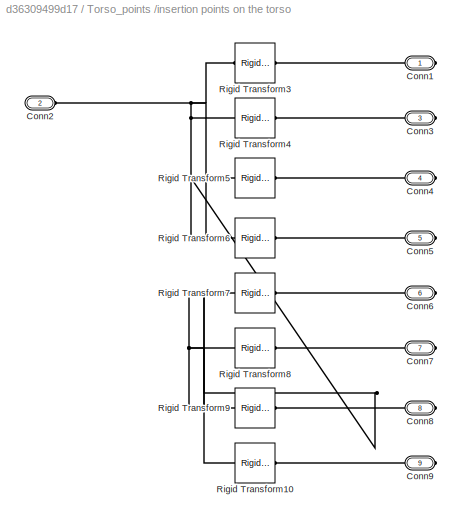
BLOCK [SubSystem] Torso_points /insertion points on the torso 
  Ports = [0, 0, 0, 0, 0, 1, 8]
  RequestExecContextInheritance = off
BLOCK [PMIOPort] Torso_points /insertion points on the torso /Conn1
  Side = Right
BLOCK [PMIOPort] Torso_points /insertion points on the torso /Conn2
  Port = 2
  Side = Left
BLOCK [PMIOPort] Torso_points /insertion points on the torso /Conn3
  Port = 3
  Side = Right
BLOCK [PMIOPort] Torso_points /insertion points on the torso /Conn4
  Port = 4
  Side = Right
BLOCK [PMIOPort] Torso_points /insertion points on the torso /Conn5
  Port = 5
  Side = Right
BLOCK [PMIOPort] Torso_points /insertion points on the torso /Conn6
  Port = 6
  Side = Right
BLOCK [PMIOPort] Torso_points /insertion points on the torso /Conn7
  Port = 7
  Side = Right
BLOCK [PMIOPort] Torso_points /insertion points on the torso /Conn8
  Port = 8
  Side = Right
BLOCK [PMIOPort] Torso_points /insertion points on the torso /Conn9
  Port = 9
  Side = Right
BLOCK [Reference] Torso_points /insertion points on the torso /Rigid Transform10  REF=sm_lib/Frames and
Transforms/Rigid
Transform
  Ports = [0, 0, 0, 0, 0, 1, 1]
  SourceBlock = sm_lib/Frames and\nTransforms/Rigid\nTransform
  SourceProductBaseCode = MS
  SourceProductName = Simscape Multibody
  SourceType = Rigid\nTransform
BLOCK [Reference] Torso_points /insertion points on the torso /Rigid Transform3  REF=sm_lib/Frames and
Transforms/Rigid
Transform
  Ports = [0, 0, 0, 0, 0, 1, 1]
  SourceBlock = sm_lib/Frames and\nTransforms/Rigid\nTransform
  SourceProductBaseCode = MS
  SourceProductName = Simscape Multibody
  SourceType = Rigid\nTransform
BLOCK [Reference] Torso_points /insertion points on the torso /Rigid Transform4  REF=sm_lib/Frames and
Transforms/Rigid
Transform
  Ports = [0, 0, 0, 0, 0, 1, 1]
  SourceBlock = sm_lib/Frames and\nTransforms/Rigid\nTransform
  SourceProductBaseCode = MS
  SourceProductName = Simscape Multibody
  SourceType = Rigid\nTransform
BLOCK [Reference] Torso_points /insertion points on the torso /Rigid Transform5  REF=sm_lib/Frames and
Transforms/Rigid
Transform
  Ports = [0, 0, 0, 0, 0, 1, 1]
  SourceBlock = sm_lib/Frames and\nTransforms/Rigid\nTransform
  SourceProductBaseCode = MS
  SourceProductName = Simscape Multibody
  SourceType = Rigid\nTransform
BLOCK [Reference] Torso_points /insertion points on the torso /Rigid Transform6  REF=sm_lib/Frames and
Transforms/Rigid
Transform
  Ports = [0, 0, 0, 0, 0, 1, 1]
  SourceBlock = sm_lib/Frames and\nTransforms/Rigid\nTransform
  SourceProductBaseCode = MS
  SourceProductName = Simscape Multibody
  SourceType = Rigid\nTransform
BLOCK [Reference] Torso_points /insertion points on the torso /Rigid Transform7  REF=sm_lib/Frames and
Transforms/Rigid
Transform
  Ports = [0, 0, 0, 0, 0, 1, 1]
  SourceBlock = sm_lib/Frames and\nTransforms/Rigid\nTransform
  SourceProductBaseCode = MS
  SourceProductName = Simscape Multibody
  SourceType = Rigid\nTransform
BLOCK [Reference] Torso_points /insertion points on the torso /Rigid Transform8  REF=sm_lib/Frames and
Transforms/Rigid
Transform
  Ports = [0, 0, 0, 0, 0, 1, 1]
  SourceBlock = sm_lib/Frames and\nTransforms/Rigid\nTransform
  SourceProductBaseCode = MS
  SourceProductName = Simscape Multibody
  SourceType = Rigid\nTransform
BLOCK [Reference] Torso_points /insertion points on the torso /Rigid Transform9  REF=sm_lib/Frames and
Transforms/Rigid
Transform
  Ports = [0, 0, 0, 0, 0, 1, 1]
  SourceBlock = sm_lib/Frames and\nTransforms/Rigid\nTransform
  SourceProductBaseCode = MS
  SourceProductName = Simscape Multibody
  SourceType = Rigid\nTransform
BLOCK [Reference] World Frame  REF=sm_lib/Frames and
Transforms/World Frame
  Ports = [0, 0, 0, 0, 0, 0, 1]
  SourceBlock = sm_lib/Frames and\nTransforms/World Frame
  SourceProductBaseCode = MS
  SourceProductName = Simscape Multibody
  SourceType = World Frame
BLOCK [Reference] test_point2  REF=sm_lib/Body Elements/Solid
  Commented = on
  Ports = [0, 0, 0, 0, 0, 0, 1]
  SourceBlock = sm_lib/Body Elements/Solid
  SourceProductBaseCode = MS
  SourceProductName = Simscape Multibody
  SourceType = Solid
BLOCK [SubSystem] test_point2 
  Commented = on
  Ports = [0, 1, 0, 0, 0, 1, 1]
  RequestExecContextInheritance = off
BLOCK [PMIOPort] test_point2 /Conn1
  Side = Right
BLOCK [PMIOPort] test_point2 /Conn2
  Port = 2
  Side = Left
BLOCK [Outport] test_point2 /Out1
  IconDisplay = Port number
BLOCK [Reference] test_point2 /PS-Simulink Converter1  REF=nesl_utility/PS-Simulink
Converter
  Ports = [0, 1, 0, 0, 0, 1]
  SourceBlock = nesl_utility/PS-Simulink\nConverter
  SourceProductBaseCode = SS
  SourceProductName = Simscape
  SourceType = PS-Simulink\nConverter
BLOCK [Reference] test_point2 /PS-Simulink Converter2  REF=nesl_utility/PS-Simulink
Converter
  Ports = [0, 1, 0, 0, 0, 1]
  SourceBlock = nesl_utility/PS-Simulink\nConverter
  SourceProductBaseCode = SS
  SourceProductName = Simscape
  SourceType = PS-Simulink\nConverter
BLOCK [Reference] test_point2 /PS-Simulink Converter3  REF=nesl_utility/PS-Simulink
Converter
  Ports = [0, 1, 0, 0, 0, 1]
  SourceBlock = nesl_utility/PS-Simulink\nConverter
  SourceProductBaseCode = SS
  SourceProductName = Simscape
  SourceType = PS-Simulink\nConverter
BLOCK [Reference] test_point2 /Rigid Transform3  REF=sm_lib/Frames and
Transforms/Rigid
Transform
  Ports = [0, 0, 0, 0, 0, 1, 1]
  SourceBlock = sm_lib/Frames and\nTransforms/Rigid\nTransform
  SourceProductBaseCode = MS
  SourceProductName = Simscape Multibody
  SourceType = Rigid\nTransform
BLOCK [Reference] test_point2 /Transform Sensor1  REF=sm_lib/Frames and
Transforms/Transform
Sensor
  Ports = [0, 0, 0, 0, 0, 1, 4]
  SourceBlock = sm_lib/Frames and\nTransforms/Transform\nSensor
  SourceProductBaseCode = MS
  SourceProductName = Simscape Multibody
  SourceType = Transform\nSensor
BLOCK [Concatenate] test_point2 /Vector Concatenate
  NumInputs = 3
  Ports = [3, 1]
BLOCK [Reference] test_point2 /World Frame  REF=sm_lib/Frames and
Transforms/World Frame
  Ports = [0, 0, 0, 0, 0, 0, 1]
  SourceBlock = sm_lib/Frames and\nTransforms/World Frame
  SourceProductBaseCode = MS
  SourceProductName = Simscape Multibody
  SourceType = World Frame
LINE I_head/I_STERNO_L/PS-Simulink Converter1:1 -> I_head/I_STERNO_L/Vector Concatenate:3
LINE I_head/I_STERNO_L/PS-Simulink Converter2:1 -> I_head/I_STERNO_L/Vector Concatenate:2
LINE I_head/I_STERNO_L/PS-Simulink Converter:1 -> I_head/I_STERNO_L/Vector Concatenate:1
LINE I_head/I_STERNO_L/Vector Concatenate:1 -> I_head/I_STERNO_L/Out1:1
LINE I_head/I_STERNO_L:1 -> I_head/To Workspace:1
LINE I_head/I_STERNO_R /PS-Simulink Converter1:1 -> I_head/I_STERNO_R /Vector Concatenate:1
LINE I_head/I_STERNO_R /PS-Simulink Converter2:1 -> I_head/I_STERNO_R /Vector Concatenate:3
LINE I_head/I_STERNO_R /PS-Simulink Converter3:1 -> I_head/I_STERNO_R /Vector Concatenate:2
LINE I_head/I_STERNO_R /Vector Concatenate:1 -> I_head/I_STERNO_R /Out1:1
LINE I_head/I_STERNO_R :1 -> I_head/To Workspace1:1
LINE I_head/SPINE/PS-Simulink Converter1:1 -> I_head/SPINE/Vector Concatenate:1
LINE I_head/SPINE/PS-Simulink Converter2:1 -> I_head/SPINE/Vector Concatenate:2
LINE I_head/SPINE/PS-Simulink Converter3:1 -> I_head/SPINE/Vector Concatenate:3
LINE I_head/SPINE/Vector Concatenate:1 -> I_head/SPINE/Out1:1
LINE I_head/SPINE:1 -> I_head/To Workspace4:1
LINE I_head/STERNHOYD/PS-Simulink Converter1:1 -> I_head/STERNHOYD/Vector Concatenate:2
LINE I_head/STERNHOYD/PS-Simulink Converter2:1 -> I_head/STERNHOYD/Vector Concatenate:3
LINE I_head/STERNHOYD/PS-Simulink Converter:1 -> I_head/STERNHOYD/Vector Concatenate:1
LINE I_head/STERNHOYD/Vector Concatenate:1 -> I_head/STERNHOYD/Out1:1
LINE I_head/STERNHOYD:1 -> I_head/To Workspace2:1
LINE I_head/TRAPEZIUS1/PS-Simulink Converter1:1 -> I_head/TRAPEZIUS1/Vector Concatenate:2
LINE I_head/TRAPEZIUS1/PS-Simulink Converter2:1 -> I_head/TRAPEZIUS1/Vector Concatenate:3
LINE I_head/TRAPEZIUS1/PS-Simulink Converter:1 -> I_head/TRAPEZIUS1/Vector Concatenate:1
LINE I_head/TRAPEZIUS1/Vector Concatenate:1 -> I_head/TRAPEZIUS1/Out1:1
LINE I_head/TRAPEZIUS1:1 -> I_head/To Workspace5:1
LINE I_head/TRAPEZIUS2/PS-Simulink Converter1:1 -> I_head/TRAPEZIUS2/Vector Concatenate:2
LINE I_head/TRAPEZIUS2/PS-Simulink Converter2:1 -> I_head/TRAPEZIUS2/Vector Concatenate:3
LINE I_head/TRAPEZIUS2/PS-Simulink Converter:1 -> I_head/TRAPEZIUS2/Vector Concatenate:1
LINE I_head/TRAPEZIUS2/Vector Concatenate:1 -> I_head/TRAPEZIUS2/Out1:1
LINE I_head/TRAPEZIUS2:1 -> I_head/To Workspace6:1
LINE I_head/manual_point/PS-Simulink Converter1:1 -> I_head/manual_point/Vector Concatenate:1
LINE I_head/manual_point/PS-Simulink Converter2:1 -> I_head/manual_point/Vector Concatenate:2
LINE I_head/manual_point/PS-Simulink Converter3:1 -> I_head/manual_point/Vector Concatenate:3
LINE I_head/manual_point/Vector Concatenate:1 -> I_head/manual_point/Out1:1
LINE I_head/manual_point:1 -> I_head/To Workspace11:1
LINE I_head/test_point/PS-Simulink Converter1:1 -> I_head/test_point/Vector Concatenate:1
LINE I_head/test_point/PS-Simulink Converter2:1 -> I_head/test_point/Vector Concatenate:2
LINE I_head/test_point/PS-Simulink Converter3:1 -> I_head/test_point/Vector Concatenate:3
LINE I_head/test_point/Vector Concatenate:1 -> I_head/test_point/Out1:1
LINE I_head/test_point:1 -> I_head/To Workspace10:1
LINE I_neck /Back(-x)/SUPPORT_MUSCLE2 /PS-Simulink Converter1:1 -> I_neck /Back(-x)/SUPPORT_MUSCLE2 /Vector Concatenate:2
LINE I_neck /Back(-x)/SUPPORT_MUSCLE2 /PS-Simulink Converter2:1 -> I_neck /Back(-x)/SUPPORT_MUSCLE2 /Vector Concatenate:3
LINE I_neck /Back(-x)/SUPPORT_MUSCLE2 /PS-Simulink Converter:1 -> I_neck /Back(-x)/SUPPORT_MUSCLE2 /Vector Concatenate:1
LINE I_neck /Back(-x)/SUPPORT_MUSCLE2 /Vector Concatenate:1 -> I_neck /Back(-x)/SUPPORT_MUSCLE2 /Out1:1
LINE I_neck /Back(-x)/SUPPORT_MUSCLE2 :1 -> I_neck /Back(-x)/Out4:1
LINE I_neck /Back(-x)/TRAPEZIUS3/PS-Simulink Converter1:1 -> I_neck /Back(-x)/TRAPEZIUS3/Vector Concatenate:2
LINE I_neck /Back(-x)/TRAPEZIUS3/PS-Simulink Converter2:1 -> I_neck /Back(-x)/TRAPEZIUS3/Vector Concatenate:3
LINE I_neck /Back(-x)/TRAPEZIUS3/PS-Simulink Converter:1 -> I_neck /Back(-x)/TRAPEZIUS3/Vector Concatenate:1
LINE I_neck /Back(-x)/TRAPEZIUS3/Vector Concatenate:1 -> I_neck /Back(-x)/TRAPEZIUS3/Out1:1
LINE I_neck /Back(-x)/TRAPEZIUS3:1 -> I_neck /Back(-x)/Out5:1
LINE I_neck /Back(-x)/TRAPEZIUS4/PS-Simulink Converter1:1 -> I_neck /Back(-x)/TRAPEZIUS4/Vector Concatenate:2
LINE I_neck /Back(-x)/TRAPEZIUS4/PS-Simulink Converter2:1 -> I_neck /Back(-x)/TRAPEZIUS4/Vector Concatenate:3
LINE I_neck /Back(-x)/TRAPEZIUS4/PS-Simulink Converter:1 -> I_neck /Back(-x)/TRAPEZIUS4/Vector Concatenate:1
LINE I_neck /Back(-x)/TRAPEZIUS4/Vector Concatenate:1 -> I_neck /Back(-x)/TRAPEZIUS4/Out1:1
LINE I_neck /Back(-x)/TRAPEZIUS4:1 -> I_neck /Back(-x)/Out6:1
LINE I_neck /Back(-x):1 -> I_neck /To Workspace7:1
LINE I_neck /Back(-x):2 -> I_neck /To Workspace8:1
LINE I_neck /Back(-x):3 -> I_neck /To Workspace9:1
LINE I_neck /Front(+x)/SUPP_MUSCLE/PS-Simulink Converter1:1 -> I_neck /Front(+x)/SUPP_MUSCLE/Vector Concatenate:2
LINE I_neck /Front(+x)/SUPP_MUSCLE/PS-Simulink Converter2:1 -> I_neck /Front(+x)/SUPP_MUSCLE/Vector Concatenate:3
LINE I_neck /Front(+x)/SUPP_MUSCLE/PS-Simulink Converter:1 -> I_neck /Front(+x)/SUPP_MUSCLE/Vector Concatenate:1
LINE I_neck /Front(+x)/SUPP_MUSCLE/Vector Concatenate:1 -> I_neck /Front(+x)/SUPP_MUSCLE/Out1:1
LINE I_neck /Front(+x)/SUPP_MUSCLE:1 -> I_neck /Front(+x)/Out4:1
LINE I_neck /Front(+x):1 -> I_neck /To Workspace3:1
LINE test_point2 /PS-Simulink Converter1:1 -> test_point2 /Vector Concatenate:1
LINE test_point2 /PS-Simulink Converter2:1 -> test_point2 /Vector Concatenate:2
LINE test_point2 /PS-Simulink Converter3:1 -> test_point2 /Vector Concatenate:3
LINE test_point2 /Vector Concatenate:1 -> test_point2 /Out1:1
LINE test_point2 :1 -> To Workspace12:1
PLINE Eye:RConn1 -- Spherical Joint1:RConn1
PNET net1: Head:RConn1 -- Revolute Joint:RConn1 -- Rigid Transform2:RConn1
PNET net2: I_head/Conn1:RConn1 -- I_head/I_STERNO_L:LConn1 -- I_head/I_STERNO_R :LConn1 -- I_head/SPINE:LConn1 -- I_head/STERNHOYD:LConn1 -- I_head/TRAPEZIUS1:LConn1 -- I_head/TRAPEZIUS2:LConn1
PNET net3: I_head/I_STERNO_L/Conn1:RConn1 -- I_head/I_STERNO_L/Rigid Transform3:RConn1 -- I_head/I_STERNO_L/Transform Sensor:RConn1
PLINE I_head/I_STERNO_L/Conn2:RConn1 -- I_head/I_STERNO_L/Rigid Transform3:LConn1
PLINE I_head/I_STERNO_L/PS-Simulink Converter1:LConn1 -- I_head/I_STERNO_L/Transform Sensor:RConn4
PLINE I_head/I_STERNO_L/PS-Simulink Converter2:LConn1 -- I_head/I_STERNO_L/Transform Sensor:RConn3
PLINE I_head/I_STERNO_L/PS-Simulink Converter:LConn1 -- I_head/I_STERNO_L/Transform Sensor:RConn2
PLINE I_head/I_STERNO_L/Transform Sensor:LConn1 -- I_head/I_STERNO_L/World Frame:RConn1
PLINE I_head/I_STERNO_L:RConn1 -- I_head/I_Sterno_L:RConn1
PNET net4: I_head/I_STERNO_R /Conn1:RConn1 -- I_head/I_STERNO_R /Rigid Transform1:RConn1 -- I_head/I_STERNO_R /Transform Sensor1:RConn1
PLINE I_head/I_STERNO_R /Conn2:RConn1 -- I_head/I_STERNO_R /Rigid Transform1:LConn1
PLINE I_head/I_STERNO_R /PS-Simulink Converter1:LConn1 -- I_head/I_STERNO_R /Transform Sensor1:RConn2
PLINE I_head/I_STERNO_R /PS-Simulink Converter2:LConn1 -- I_head/I_STERNO_R /Transform Sensor1:RConn3
PLINE I_head/I_STERNO_R /PS-Simulink Converter3:LConn1 -- I_head/I_STERNO_R /Transform Sensor1:RConn4
PLINE I_head/I_STERNO_R /Transform Sensor1:LConn1 -- I_head/I_STERNO_R /World Frame:RConn1
PLINE I_head/I_STERNO_R :RConn1 -- I_head/I_Sterno_R:RConn1
PLINE I_head/I_Sterno_L1:RConn1 -- I_head/test_point:RConn1
PLINE I_head/I_Sterno_L2:RConn1 -- I_head/manual_point:RConn1
PNET net5: I_head/SPINE/Conn1:RConn1 -- I_head/SPINE/Rigid Transform3:RConn1 -- I_head/SPINE/Transform Sensor1:RConn1
PLINE I_head/SPINE/Conn2:RConn1 -- I_head/SPINE/Rigid Transform3:LConn1
PLINE I_head/SPINE/PS-Simulink Converter1:LConn1 -- I_head/SPINE/Transform Sensor1:RConn2
PLINE I_head/SPINE/PS-Simulink Converter2:LConn1 -- I_head/SPINE/Transform Sensor1:RConn3
PLINE I_head/SPINE/PS-Simulink Converter3:LConn1 -- I_head/SPINE/Transform Sensor1:RConn4
PLINE I_head/SPINE/Transform Sensor1:LConn1 -- I_head/SPINE/World Frame:RConn1
PLINE I_head/SPINE:RConn1 -- I_head/Spine:RConn1
PNET net6: I_head/STERNHOYD/Conn1:RConn1 -- I_head/STERNHOYD/Rigid Transform3:RConn1 -- I_head/STERNHOYD/Transform Sensor:RConn1
PLINE I_head/STERNHOYD/Conn2:RConn1 -- I_head/STERNHOYD/Rigid Transform3:LConn1
PLINE I_head/STERNHOYD/PS-Simulink Converter1:LConn1 -- I_head/STERNHOYD/Transform Sensor:RConn3
PLINE I_head/STERNHOYD/PS-Simulink Converter2:LConn1 -- I_head/STERNHOYD/Transform Sensor:RConn4
PLINE I_head/STERNHOYD/PS-Simulink Converter:LConn1 -- I_head/STERNHOYD/Transform Sensor:RConn2
PLINE I_head/STERNHOYD/Transform Sensor:LConn1 -- I_head/STERNHOYD/World Frame:RConn1
PLINE I_head/STERNHOYD:RConn1 -- I_head/Sternhoyid:RConn1
PNET net7: I_head/TRAPEZIUS1/Conn1:RConn1 -- I_head/TRAPEZIUS1/Rigid Transform3:RConn1 -- I_head/TRAPEZIUS1/Transform Sensor:RConn1
PLINE I_head/TRAPEZIUS1/Conn2:RConn1 -- I_head/TRAPEZIUS1/Rigid Transform3:LConn1
PLINE I_head/TRAPEZIUS1/PS-Simulink Converter1:LConn1 -- I_head/TRAPEZIUS1/Transform Sensor:RConn3
PLINE I_head/TRAPEZIUS1/PS-Simulink Converter2:LConn1 -- I_head/TRAPEZIUS1/Transform Sensor:RConn4
PLINE I_head/TRAPEZIUS1/PS-Simulink Converter:LConn1 -- I_head/TRAPEZIUS1/Transform Sensor:RConn2
PLINE I_head/TRAPEZIUS1/Transform Sensor:LConn1 -- I_head/TRAPEZIUS1/World Frame:RConn1
PLINE I_head/TRAPEZIUS1:RConn1 -- I_head/Trapezius_L:RConn1
PNET net8: I_head/TRAPEZIUS2/Conn1:RConn1 -- I_head/TRAPEZIUS2/Rigid Transform3:RConn1 -- I_head/TRAPEZIUS2/Transform Sensor:RConn1
PLINE I_head/TRAPEZIUS2/Conn2:RConn1 -- I_head/TRAPEZIUS2/Rigid Transform3:LConn1
PLINE I_head/TRAPEZIUS2/PS-Simulink Converter1:LConn1 -- I_head/TRAPEZIUS2/Transform Sensor:RConn3
PLINE I_head/TRAPEZIUS2/PS-Simulink Converter2:LConn1 -- I_head/TRAPEZIUS2/Transform Sensor:RConn4
PLINE I_head/TRAPEZIUS2/PS-Simulink Converter:LConn1 -- I_head/TRAPEZIUS2/Transform Sensor:RConn2
PLINE I_head/TRAPEZIUS2/Transform Sensor:LConn1 -- I_head/TRAPEZIUS2/World Frame:RConn1
PLINE I_head/TRAPEZIUS2:RConn1 -- I_head/Trapezius_R:RConn1
PNET net9: I_head/manual_point/Conn1:RConn1 -- I_head/manual_point/Rigid Transform3:RConn1 -- I_head/manual_point/Transform Sensor1:RConn1
PLINE I_head/manual_point/Conn2:RConn1 -- I_head/manual_point/Rigid Transform3:LConn1
PLINE I_head/manual_point/PS-Simulink Converter1:LConn1 -- I_head/manual_point/Transform Sensor1:RConn2
PLINE I_head/manual_point/PS-Simulink Converter2:LConn1 -- I_head/manual_point/Transform Sensor1:RConn3
PLINE I_head/manual_point/PS-Simulink Converter3:LConn1 -- I_head/manual_point/Transform Sensor1:RConn4
PLINE I_head/manual_point/Transform Sensor1:LConn1 -- I_head/manual_point/World Frame:RConn1
PNET net10: I_head/test_point/Conn1:RConn1 -- I_head/test_point/Rigid Transform3:RConn1 -- I_head/test_point/Transform Sensor1:RConn1
PLINE I_head/test_point/Conn2:RConn1 -- I_head/test_point/Rigid Transform3:LConn1
PLINE I_head/test_point/PS-Simulink Converter1:LConn1 -- I_head/test_point/Transform Sensor1:RConn2
PLINE I_head/test_point/PS-Simulink Converter2:LConn1 -- I_head/test_point/Transform Sensor1:RConn3
PLINE I_head/test_point/PS-Simulink Converter3:LConn1 -- I_head/test_point/Transform Sensor1:RConn4
PLINE I_head/test_point/Transform Sensor1:LConn1 -- I_head/test_point/World Frame:RConn1
PLINE I_head:LConn1 -- Rigid Transform2:LConn1
PNET net11: I_neck /Back(-x)/Conn4:RConn1 -- I_neck /Back(-x)/SUPPORT_MUSCLE2 :LConn1 -- I_neck /Back(-x)/TRAPEZIUS3:LConn1 -- I_neck /Back(-x)/TRAPEZIUS4:LConn1
PLINE I_neck /Back(-x)/Conn5:RConn1 -- I_neck /Back(-x)/SUPPORT_MUSCLE2 :RConn1
PLINE I_neck /Back(-x)/Conn6:RConn1 -- I_neck /Back(-x)/TRAPEZIUS3:RConn1
PLINE I_neck /Back(-x)/Conn7:RConn1 -- I_neck /Back(-x)/TRAPEZIUS4:RConn1
PNET net12: I_neck /Back(-x)/SUPPORT_MUSCLE2 /Conn1:RConn1 -- I_neck /Back(-x)/SUPPORT_MUSCLE2 /Rigid Transform3:RConn1 -- I_neck /Back(-x)/SUPPORT_MUSCLE2 /Transform Sensor:RConn1
PLINE I_neck /Back(-x)/SUPPORT_MUSCLE2 /Conn2:RConn1 -- I_neck /Back(-x)/SUPPORT_MUSCLE2 /Rigid Transform3:LConn1
PLINE I_neck /Back(-x)/SUPPORT_MUSCLE2 /PS-Simulink Converter1:LConn1 -- I_neck /Back(-x)/SUPPORT_MUSCLE2 /Transform Sensor:RConn3
PLINE I_neck /Back(-x)/SUPPORT_MUSCLE2 /PS-Simulink Converter2:LConn1 -- I_neck /Back(-x)/SUPPORT_MUSCLE2 /Transform Sensor:RConn4
PLINE I_neck /Back(-x)/SUPPORT_MUSCLE2 /PS-Simulink Converter:LConn1 -- I_neck /Back(-x)/SUPPORT_MUSCLE2 /Transform Sensor:RConn2
PLINE I_neck /Back(-x)/SUPPORT_MUSCLE2 /Transform Sensor:LConn1 -- I_neck /Back(-x)/SUPPORT_MUSCLE2 /World Frame:RConn1
PNET net13: I_neck /Back(-x)/TRAPEZIUS3/Conn1:RConn1 -- I_neck /Back(-x)/TRAPEZIUS3/Rigid Transform3:RConn1 -- I_neck /Back(-x)/TRAPEZIUS3/Transform Sensor:RConn1
PLINE I_neck /Back(-x)/TRAPEZIUS3/Conn2:RConn1 -- I_neck /Back(-x)/TRAPEZIUS3/Rigid Transform3:LConn1
PLINE I_neck /Back(-x)/TRAPEZIUS3/PS-Simulink Converter1:LConn1 -- I_neck /Back(-x)/TRAPEZIUS3/Transform Sensor:RConn3
PLINE I_neck /Back(-x)/TRAPEZIUS3/PS-Simulink Converter2:LConn1 -- I_neck /Back(-x)/TRAPEZIUS3/Transform Sensor:RConn4
PLINE I_neck /Back(-x)/TRAPEZIUS3/PS-Simulink Converter:LConn1 -- I_neck /Back(-x)/TRAPEZIUS3/Transform Sensor:RConn2
PLINE I_neck /Back(-x)/TRAPEZIUS3/Transform Sensor:LConn1 -- I_neck /Back(-x)/TRAPEZIUS3/World Frame:RConn1
PNET net14: I_neck /Back(-x)/TRAPEZIUS4/Conn1:RConn1 -- I_neck /Back(-x)/TRAPEZIUS4/Rigid Transform3:RConn1 -- I_neck /Back(-x)/TRAPEZIUS4/Transform Sensor:RConn1
PLINE I_neck /Back(-x)/TRAPEZIUS4/Conn2:RConn1 -- I_neck /Back(-x)/TRAPEZIUS4/Rigid Transform3:LConn1
PLINE I_neck /Back(-x)/TRAPEZIUS4/PS-Simulink Converter1:LConn1 -- I_neck /Back(-x)/TRAPEZIUS4/Transform Sensor:RConn3
PLINE I_neck /Back(-x)/TRAPEZIUS4/PS-Simulink Converter2:LConn1 -- I_neck /Back(-x)/TRAPEZIUS4/Transform Sensor:RConn4
PLINE I_neck /Back(-x)/TRAPEZIUS4/PS-Simulink Converter:LConn1 -- I_neck /Back(-x)/TRAPEZIUS4/Transform Sensor:RConn2
PLINE I_neck /Back(-x)/TRAPEZIUS4/Transform Sensor:LConn1 -- I_neck /Back(-x)/TRAPEZIUS4/World Frame:RConn1
PNET net15: I_neck /Back(-x):LConn1 -- I_neck /Conn1:RConn1 -- I_neck /Front(+x):LConn1
PLINE I_neck /Back(-x):RConn1 -- I_neck /Support muscle back:RConn1
PLINE I_neck /Back(-x):RConn2 -- I_neck /Trapezius_L1:RConn1
PLINE I_neck /Back(-x):RConn3 -- I_neck /Trapezius_R1:RConn1
PLINE I_neck /Front(+x)/Conn4:RConn1 -- I_neck /Front(+x)/SUPP_MUSCLE:LConn1
PLINE I_neck /Front(+x)/Conn5:RConn1 -- I_neck /Front(+x)/SUPP_MUSCLE:RConn1
PNET net16: I_neck /Front(+x)/SUPP_MUSCLE/Conn1:RConn1 -- I_neck /Front(+x)/SUPP_MUSCLE/Rigid Transform3:RConn1 -- I_neck /Front(+x)/SUPP_MUSCLE/Transform Sensor:RConn1
PLINE I_neck /Front(+x)/SUPP_MUSCLE/Conn2:RConn1 -- I_neck /Front(+x)/SUPP_MUSCLE/Rigid Transform3:LConn1
PLINE I_neck /Front(+x)/SUPP_MUSCLE/PS-Simulink Converter1:LConn1 -- I_neck /Front(+x)/SUPP_MUSCLE/Transform Sensor:RConn3
PLINE I_neck /Front(+x)/SUPP_MUSCLE/PS-Simulink Converter2:LConn1 -- I_neck /Front(+x)/SUPP_MUSCLE/Transform Sensor:RConn4
PLINE I_neck /Front(+x)/SUPP_MUSCLE/PS-Simulink Converter:LConn1 -- I_neck /Front(+x)/SUPP_MUSCLE/Transform Sensor:RConn2
PLINE I_neck /Front(+x)/SUPP_MUSCLE/Transform Sensor:LConn1 -- I_neck /Front(+x)/SUPP_MUSCLE/World Frame:RConn1
PLINE I_neck /Front(+x):RConn1 -- I_neck /Support muscle front:RConn1
PLINE I_neck :LConn1 -- Rigid Transform7:LConn1
PNET net17: Mechanism Configuration:RConn1 -- Rigid Transform6:LConn1 -- Solver Configuration:RConn1 -- Spherical Joint:LConn1 -- Torso_points :LConn1 -- World Frame:RConn1
PNET net18: Neck:RConn1 -- Rigid Transform1:LConn1 -- Rigid Transform5:RConn1 -- Rigid Transform7:RConn1
PLINE Revolute Joint:LConn1 -- Rigid Transform1:RConn1
PLINE Rigid Transform5:LConn1 -- Spherical Joint:RConn1
PLINE Rigid Transform6:RConn1 -- Torso:RConn1
PLINE Torso_points /Conn1:RConn1 -- Torso_points /insertion points on the torso :LConn1
PLINE Torso_points /Q_Sternhoyid:RConn1 -- Torso_points /insertion points on the torso :RConn4
PLINE Torso_points /Q_Sterno_L:RConn1 -- Torso_points /insertion points on the torso :RConn1
PLINE Torso_points /Q_Sterno_R:RConn1 -- Torso_points /insertion points on the torso :RConn2
PLINE Torso_points /Q_support muscle front:RConn1 -- Torso_points /insertion points on the torso :RConn3
PLINE Torso_points /Spine1:RConn1 -- Torso_points /insertion points on the torso :RConn8
PLINE Torso_points /Support muscle back1:RConn1 -- Torso_points /insertion points on the torso :RConn7
PLINE Torso_points /Trapezius_L2:RConn1 -- Torso_points /insertion points on the torso :RConn5
PLINE Torso_points /Trapezius_L3:RConn1 -- Torso_points /insertion points on the torso :RConn6
PLINE Torso_points /insertion points on the torso /Conn1:RConn1 -- Torso_points /insertion points on the torso /Rigid Transform3:RConn1
PNET net19: Torso_points /insertion points on the torso /Conn2:RConn1 -- Torso_points /insertion points on the torso /Rigid Transform10:LConn1 -- Torso_points /insertion points on the torso /Rigid Transform3:LConn1 -- Torso_points /insertion points on the torso /Rigid Transform4:LConn1 -- Torso_points /insertion points on the torso /Rigid Transform5:LConn1 -- Torso_points /insertion points on the torso /Rigid Transform6:LConn1 -- Torso_points /insertion points on the torso /Rigid Transform7:LConn1 -- Torso_points /insertion points on the torso /Rigid Transform8:LConn1 -- Torso_points /insertion points on the torso /Rigid Transform9:LConn1
PLINE Torso_points /insertion points on the torso /Conn3:RConn1 -- Torso_points /insertion points on the torso /Rigid Transform4:RConn1
PLINE Torso_points /insertion points on the torso /Conn4:RConn1 -- Torso_points /insertion points on the torso /Rigid Transform5:RConn1
PLINE Torso_points /insertion points on the torso /Conn5:RConn1 -- Torso_points /insertion points on the torso /Rigid Transform6:RConn1
PLINE Torso_points /insertion points on the torso /Conn6:RConn1 -- Torso_points /insertion points on the torso /Rigid Transform7:RConn1
PLINE Torso_points /insertion points on the torso /Conn7:RConn1 -- Torso_points /insertion points on the torso /Rigid Transform8:RConn1
PLINE Torso_points /insertion points on the torso /Conn8:RConn1 -- Torso_points /insertion points on the torso /Rigid Transform9:RConn1
PLINE Torso_points /insertion points on the torso /Conn9:RConn1 -- Torso_points /insertion points on the torso /Rigid Transform10:RConn1
PNET net20: test_point2 /Conn1:RConn1 -- test_point2 /Rigid Transform3:RConn1 -- test_point2 /Transform Sensor1:RConn1
PLINE test_point2 /Conn2:RConn1 -- test_point2 /Rigid Transform3:LConn1
PLINE test_point2 /PS-Simulink Converter1:LConn1 -- test_point2 /Transform Sensor1:RConn2
PLINE test_point2 /PS-Simulink Converter2:LConn1 -- test_point2 /Transform Sensor1:RConn3
PLINE test_point2 /PS-Simulink Converter3:LConn1 -- test_point2 /Transform Sensor1:RConn4
PLINE test_point2 /Transform Sensor1:LConn1 -- test_point2 /World Frame:RConn1
PLINE test_point2 :RConn1 -- test_point2:RConn1
note: PNET lines group multi-terminal physical nets as a canonical sorted terminal list (undirected conserving connections); 2-terminal nets keep the pairwise PLINE form
